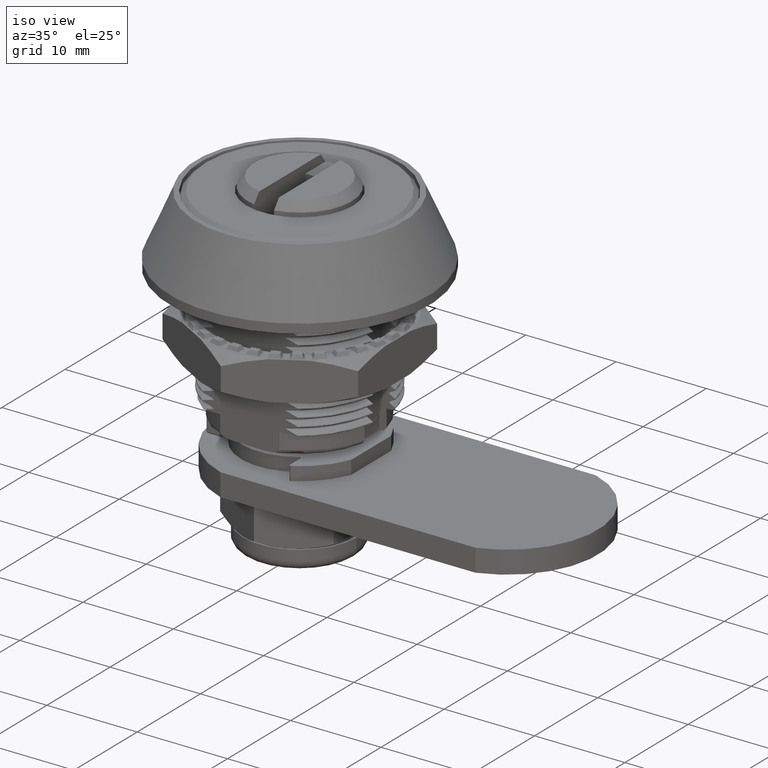
[diagram: clean part render]
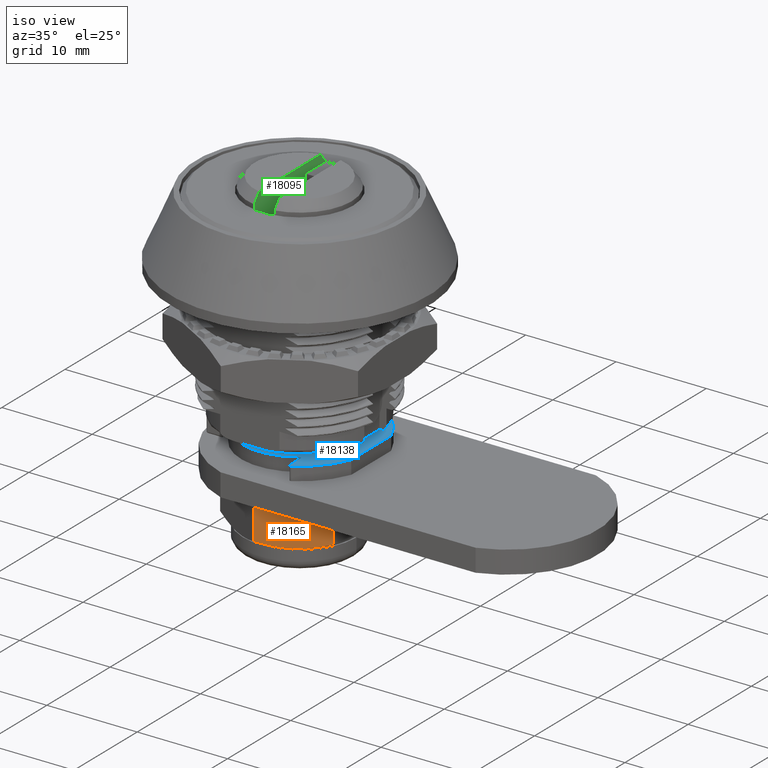
[diagram: same view with three faces highlighted in distinct colors, each labeled with its STEP entity id]
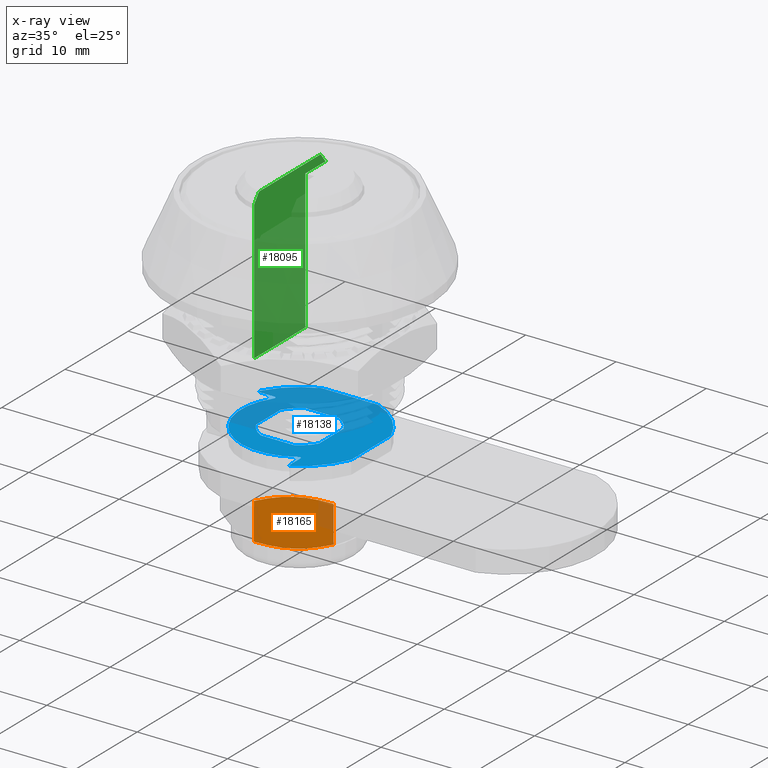
[diagram: x-ray of the same camera — body ghosted, the three highlighted faces saturated]
A machine part, iso view with three faces highlighted in distinct colors.
The next image is the same camera in x-ray (body ghosted, the three faces saturated) — at least one of them is partly hidden behind the body in this view.
Their STEP definitions:

[orange] entity #18165 — the highlighted planar face has unit normal (-0.5, 0.866, 0).
#60=(
BOUNDED_CURVE()
B_SPLINE_CURVE(2,(#52311,#52312,#52313),.UNSPECIFIED.,.F.,.F.)
B_SPLINE_CURVE_WITH_KNOTS((3,3),(0.,0.733624149249563),.UNSPECIFIED.)
CURVE()
GEOMETRIC_REPRESENTATION_ITEM()
RATIONAL_B_SPLINE_CURVE((1.,1.15470053837925,1.))
REPRESENTATION_ITEM('')
);
#61=(
BOUNDED_CURVE()
B_SPLINE_CURVE(2,(#52316,#52317,#52318),.UNSPECIFIED.,.F.,.F.)
B_SPLINE_CURVE_WITH_KNOTS((3,3),(0.,0.733624149249563),.UNSPECIFIED.)
CURVE()
GEOMETRIC_REPRESENTATION_ITEM()
RATIONAL_B_SPLINE_CURVE((1.,1.15470053837925,1.))
REPRESENTATION_ITEM('')
);
#3039=LINE('',#52283,#3852);
#3043=LINE('',#52315,#3856);
#3852=VECTOR('',#20192,4.06054737548);
#3856=VECTOR('',#20202,4.06054737548);
#4385=PLANE('',#18778);
#5449=FACE_OUTER_BOUND('',#6488,.T.);
#6488=EDGE_LOOP('',(#16373,#16374,#16375,#16376));
#8454=VERTEX_POINT('',#52277);
#8456=VERTEX_POINT('',#52282);
#8462=VERTEX_POINT('',#52310);
#8463=VERTEX_POINT('',#52314);
#11148=EDGE_CURVE('',#8456,#8454,#3039,.T.);
#11157=EDGE_CURVE('',#8462,#8454,#60,.T.);
#11158=EDGE_CURVE('',#8463,#8462,#3043,.T.);
#11159=EDGE_CURVE('',#8456,#8463,#61,.T.);
#16373=ORIENTED_EDGE('',*,*,#11157,.F.);
#16374=ORIENTED_EDGE('',*,*,#11158,.F.);
#16375=ORIENTED_EDGE('',*,*,#11159,.F.);
#16376=ORIENTED_EDGE('',*,*,#11148,.T.);
#18165=ADVANCED_FACE('',(#5449),#4385,.F.);
#18778=AXIS2_PLACEMENT_3D('',#52309,#20200,#20201);
#20192=DIRECTION('',(0.,0.,-1.));
#20200=DIRECTION('center_axis',(-0.5,0.866025403784439,0.));
#20201=DIRECTION('ref_axis',(0.,0.,1.));
#20202=DIRECTION('',(0.,0.,-1.));
#52277=CARTESIAN_POINT('',(-5.55111512312578E-16,-7.25,-32.43027368774));
#52282=CARTESIAN_POINT('',(4.43934464690916E-16,-7.25,-28.36972631226));
#52283=CARTESIAN_POINT('',(-5.55111512312578E-16,-7.25,-30.4));
#52309=CARTESIAN_POINT('Origin',(4.43934464690916E-16,-7.25,-33.1));
#52310=CARTESIAN_POINT('',(6.27868417743718,-3.625,-32.43027368774));
#52311=CARTESIAN_POINT('Ctrl Pts',(6.27868417743718,-3.625,-32.43027368774));
#52312=CARTESIAN_POINT('Ctrl Pts',(3.13934208871859,-5.4375,-33.4767210506462));
#52313=CARTESIAN_POINT('Ctrl Pts',(2.41352831440251E-15,-7.25,-32.43027368774));
#52314=CARTESIAN_POINT('',(6.27868417743718,-3.625,-28.36972631226));
#52315=CARTESIAN_POINT('',(6.27868417743718,-3.625,-30.4));
#52316=CARTESIAN_POINT('Ctrl Pts',(2.41352831440251E-15,-7.25,-28.36972631226));
#52317=CARTESIAN_POINT('Ctrl Pts',(3.13934208871859,-5.4375,-27.3232789493538));
#52318=CARTESIAN_POINT('Ctrl Pts',(6.27868417743718,-3.625,-28.36972631226));

[blue] entity #18138 — the highlighted planar face has unit normal (-0, -0, 1).
#2981=LINE('',#52065,#3794);
#2985=LINE('',#52077,#3798);
#2989=LINE('',#52089,#3802);
#2993=LINE('',#52100,#3806);
#2997=LINE('',#52113,#3810);
#3002=LINE('',#52131,#3815);
#3008=LINE('',#52155,#3821);
#3013=LINE('',#52172,#3826);
#3794=VECTOR('',#19962,3.87298334620742);
#3798=VECTOR('',#19974,3.68646171823335);
#3802=VECTOR('',#19986,3.87298334620742);
#3806=VECTOR('',#19998,3.68646171823335);
#3810=VECTOR('',#20010,6.27375485654326);
#3815=VECTOR('',#20029,1.63575905596784);
#3821=VECTOR('',#20055,1.63575905596784);
#3826=VECTOR('',#20074,6.27375485654325);
#4369=PLANE('',#18730);
#4578=FACE_BOUND('',#6450,.T.);
#5422=FACE_OUTER_BOUND('',#6449,.T.);
#6449=EDGE_LOOP('',(#16233,#16234,#16235,#16236,#16237,#16238,#16239,#16240,
#16241,#16242,#16243,#16244));
#6450=EDGE_LOOP('',(#16245,#16246,#16247,#16248,#16249,#16250,#16251,#16252));
#6801=CIRCLE('',#18687,4.);
#6803=CIRCLE('',#18691,4.);
#6805=CIRCLE('',#18695,4.);
#6807=CIRCLE('',#18699,4.);
#6809=CIRCLE('',#18703,8.5);
#6811=CIRCLE('',#18707,8.5);
#6813=CIRCLE('',#18710,0.2);
#6815=CIRCLE('',#18714,0.2);
#6817=CIRCLE('',#18717,6.5);
#6819=CIRCLE('',#18720,0.2);
#6821=CIRCLE('',#18724,0.2);
#6823=CIRCLE('',#18727,8.5);
#8381=VERTEX_POINT('',#52055);
#8382=VERTEX_POINT('',#52056);
#8385=VERTEX_POINT('',#52064);
#8387=VERTEX_POINT('',#52070);
#8389=VERTEX_POINT('',#52076);
#8391=VERTEX_POINT('',#52082);
#8393=VERTEX_POINT('',#52088);
#8395=VERTEX_POINT('',#52094);
#8397=VERTEX_POINT('',#52103);
#8398=VERTEX_POINT('',#52104);
#8401=VERTEX_POINT('',#52112);
#8403=VERTEX_POINT('',#52118);
#8405=VERTEX_POINT('',#52124);
#8407=VERTEX_POINT('',#52130);
#8409=VERTEX_POINT('',#52136);
#8411=VERTEX_POINT('',#52142);
#8413=VERTEX_POINT('',#52148);
#8415=VERTEX_POINT('',#52154);
#8417=VERTEX_POINT('',#52160);
#8419=VERTEX_POINT('',#52166);
#11042=EDGE_CURVE('',#8381,#8382,#6801,.T.);
#11046=EDGE_CURVE('',#8382,#8385,#2981,.T.);
#11049=EDGE_CURVE('',#8385,#8387,#6803,.T.);
#11052=EDGE_CURVE('',#8387,#8389,#2985,.T.);
#11055=EDGE_CURVE('',#8389,#8391,#6805,.T.);
#11058=EDGE_CURVE('',#8391,#8393,#2989,.T.);
#11061=EDGE_CURVE('',#8393,#8395,#6807,.T.);
#11064=EDGE_CURVE('',#8395,#8381,#2993,.T.);
#11066=EDGE_CURVE('',#8397,#8398,#6809,.T.);
#11070=EDGE_CURVE('',#8398,#8401,#2997,.T.);
#11073=EDGE_CURVE('',#8401,#8403,#6811,.T.);
#11076=EDGE_CURVE('',#8403,#8405,#6813,.T.);
#11079=EDGE_CURVE('',#8405,#8407,#3002,.T.);
#11082=EDGE_CURVE('',#8407,#8409,#6815,.T.);
#11085=EDGE_CURVE('',#8409,#8411,#6817,.T.);
#11088=EDGE_CURVE('',#8411,#8413,#6819,.T.);
#11091=EDGE_CURVE('',#8413,#8415,#3008,.T.);
#11094=EDGE_CURVE('',#8415,#8417,#6821,.T.);
#11097=EDGE_CURVE('',#8417,#8419,#6823,.T.);
#11100=EDGE_CURVE('',#8419,#8397,#3013,.T.);
#16233=ORIENTED_EDGE('',*,*,#11100,.T.);
#16234=ORIENTED_EDGE('',*,*,#11066,.T.);
#16235=ORIENTED_EDGE('',*,*,#11070,.T.);
#16236=ORIENTED_EDGE('',*,*,#11073,.T.);
#16237=ORIENTED_EDGE('',*,*,#11076,.T.);
#16238=ORIENTED_EDGE('',*,*,#11079,.T.);
#16239=ORIENTED_EDGE('',*,*,#11082,.T.);
#16240=ORIENTED_EDGE('',*,*,#11085,.T.);
#16241=ORIENTED_EDGE('',*,*,#11088,.T.);
#16242=ORIENTED_EDGE('',*,*,#11091,.T.);
#16243=ORIENTED_EDGE('',*,*,#11094,.T.);
#16244=ORIENTED_EDGE('',*,*,#11097,.T.);
#16245=ORIENTED_EDGE('',*,*,#11055,.T.);
#16246=ORIENTED_EDGE('',*,*,#11058,.T.);
#16247=ORIENTED_EDGE('',*,*,#11061,.T.);
#16248=ORIENTED_EDGE('',*,*,#11064,.T.);
#16249=ORIENTED_EDGE('',*,*,#11042,.T.);
#16250=ORIENTED_EDGE('',*,*,#11046,.T.);
#16251=ORIENTED_EDGE('',*,*,#11049,.T.);
#16252=ORIENTED_EDGE('',*,*,#11052,.T.);
#18138=ADVANCED_FACE('',(#5422,#4578),#4369,.T.);
#18687=AXIS2_PLACEMENT_3D('',#52057,#19954,#19955);
#18691=AXIS2_PLACEMENT_3D('',#52071,#19967,#19968);
#18695=AXIS2_PLACEMENT_3D('',#52083,#19979,#19980);
#18699=AXIS2_PLACEMENT_3D('',#52095,#19991,#19992);
#18703=AXIS2_PLACEMENT_3D('',#52105,#20002,#20003);
#18707=AXIS2_PLACEMENT_3D('',#52119,#20015,#20016);
#18710=AXIS2_PLACEMENT_3D('',#52125,#20022,#20023);
#18714=AXIS2_PLACEMENT_3D('',#52137,#20034,#20035);
#18717=AXIS2_PLACEMENT_3D('',#52143,#20041,#20042);
#18720=AXIS2_PLACEMENT_3D('',#52149,#20048,#20049);
#18724=AXIS2_PLACEMENT_3D('',#52161,#20060,#20061);
#18727=AXIS2_PLACEMENT_3D('',#52167,#20067,#20068);
#18730=AXIS2_PLACEMENT_3D('',#52174,#20076,#20077);
#19954=DIRECTION('center_axis',(4.31772930828453E-16,1.13829290968158E-31,
-1.));
#19955=DIRECTION('ref_axis',(-0.46080771477917,-0.8875,-1.98964297558564E-16));
#19962=DIRECTION('',(-6.72678210739216E-17,1.,8.47848667126269E-32));
#19967=DIRECTION('center_axis',(4.31772930828453E-16,1.13829290968158E-31,
-1.));
#19968=DIRECTION('ref_axis',(-0.875,0.484122918275927,-3.77801314474896E-16));
#19974=DIRECTION('',(1.,5.04507287420866E-16,4.31772930828453E-16));
#19979=DIRECTION('center_axis',(4.31772930828453E-16,1.13829290968158E-31,
-1.));
#19980=DIRECTION('ref_axis',(0.460807714779168,0.887500000000001,1.98964297558563E-16));
#19986=DIRECTION('',(6.72678210739221E-17,-1.,-8.47848667126267E-32));
#19991=DIRECTION('center_axis',(4.31772930828453E-16,1.13829290968158E-31,
-1.));
#19992=DIRECTION('ref_axis',(0.875,-0.484122918275928,3.77801314474896E-16));
#19998=DIRECTION('',(-1.,8.50722738732076E-16,-4.31772930828453E-16));
#20002=DIRECTION('center_axis',(-4.31772930828454E-16,-9.58728498431268E-32,
1.));
#20003=DIRECTION('ref_axis',(-0.369044403326074,-0.929411764705882,-1.59343383629937E-16));
#20010=DIRECTION('',(-1.,-2.22044604925031E-16,-4.31772930828454E-16));
#20015=DIRECTION('center_axis',(-4.31772930828454E-16,-9.58728498431268E-32,
1.));
#20016=DIRECTION('ref_axis',(0.866025403784439,-0.5,3.73926326763902E-16));
#20022=DIRECTION('center_axis',(-4.31772930828454E-16,-9.58728498431268E-32,
1.));
#20023=DIRECTION('ref_axis',(-2.22044604925031E-16,1.,-1.09476442525376E-47));
#20029=DIRECTION('',(1.,5.61404799990026E-16,4.31772930828454E-16));
#20034=DIRECTION('center_axis',(4.31772930828454E-16,9.58728498431268E-32,
-1.));
#20035=DIRECTION('ref_axis',(-2.22044604925031E-16,1.,-1.09476442525376E-47));
#20041=DIRECTION('center_axis',(-4.31772930828453E-16,-9.58728498431268E-32,
1.));
#20042=DIRECTION('ref_axis',(-0.559701492537313,0.828694297827313,-2.41663953821895E-16));
#20048=DIRECTION('center_axis',(4.31772930828454E-16,1.20524753131283E-31,
-1.));
#20049=DIRECTION('ref_axis',(-0.559701492537314,0.828694297827313,-2.41663953821896E-16));
#20055=DIRECTION('',(2.22044604925031E-16,-1.,0.));
#20060=DIRECTION('center_axis',(-4.31772930828454E-16,-9.58728498431268E-32,
1.));
#20061=DIRECTION('ref_axis',(-0.499999999999999,0.866025403784439,-2.15886465414226E-16));
#20067=DIRECTION('center_axis',(-4.31772930828454E-16,-9.58728498431268E-32,
1.));
#20068=DIRECTION('ref_axis',(-0.929411764705882,0.369044403326073,-4.01294841593504E-16));
#20074=DIRECTION('',(-2.22044604925031E-16,1.,0.));
#20076=DIRECTION('center_axis',(-4.31772930828453E-16,-1.13829290968158E-31,
1.));
#20077=DIRECTION('ref_axis',(2.22044604925031E-16,-1.,0.));
#52055=CARTESIAN_POINT('',(-1.84323085911668,-3.54999999999999,-23.7));
#52056=CARTESIAN_POINT('',(-3.5,-1.9364916731037,-23.7));
#52057=CARTESIAN_POINT('Origin',(4.63288555388694E-16,9.99200722162641E-15,
-23.7));
#52064=CARTESIAN_POINT('',(-3.5,1.93649167310372,-23.7));
#52065=CARTESIAN_POINT('',(-3.5,1.35331411876073,-23.7));
#52070=CARTESIAN_POINT('',(-1.84323085911668,3.55000000000001,-23.7));
#52071=CARTESIAN_POINT('Origin',(4.63288555388694E-16,9.99200722162641E-15,
-23.7));
#52076=CARTESIAN_POINT('',(1.84323085911667,3.55000000000001,-23.7));
#52077=CARTESIAN_POINT('',(1.30668371176722,3.55000000000001,-23.7));
#52082=CARTESIAN_POINT('',(3.5,1.93649167310372,-23.7));
#52083=CARTESIAN_POINT('Origin',(4.63288555388694E-16,9.99200722162641E-15,
-23.7));
#52088=CARTESIAN_POINT('',(3.5,-1.9364916731037,-23.7));
#52089=CARTESIAN_POINT('',(3.5,-0.583177554342975,-23.7));
#52094=CARTESIAN_POINT('',(1.84323085911667,-3.54999999999999,-23.7));
#52095=CARTESIAN_POINT('Origin',(4.63288555388694E-16,9.99200722162641E-15,
-23.7));
#52100=CARTESIAN_POINT('',(-0.536547147349461,-3.54999999999999,-23.7));
#52103=CARTESIAN_POINT('',(7.90000000000001,3.13687742827163,-23.7));
#52104=CARTESIAN_POINT('',(3.13687742827164,7.9,-23.7));
#52105=CARTESIAN_POINT('Origin',(1.02330184606344E-14,2.27218654128211E-30,
-23.7));
#52112=CARTESIAN_POINT('',(-3.13687742827162,7.9,-23.7));
#52113=CARTESIAN_POINT('',(3.13687742827164,7.9,-23.7));
#52118=CARTESIAN_POINT('',(-7.36121593216772,4.25,-23.7));
#52119=CARTESIAN_POINT('Origin',(1.02330184606344E-14,2.27218654128211E-30,
-23.7));
#52124=CARTESIAN_POINT('',(-7.18801085141083,3.95,-23.7));
#52125=CARTESIAN_POINT('Origin',(-7.18801085141083,4.15,-23.7));
#52130=CARTESIAN_POINT('',(-5.55225179544299,3.95,-23.7));
#52131=CARTESIAN_POINT('',(-7.18801085141083,3.95,-23.7));
#52136=CARTESIAN_POINT('',(-5.38651293587753,3.63805970149254,-23.7));
#52137=CARTESIAN_POINT('Origin',(-5.55225179544299,3.75,-23.7));
#52142=CARTESIAN_POINT('',(3.63805970149255,-5.38651293587754,-23.7));
#52143=CARTESIAN_POINT('Origin',(1.02330184606344E-14,2.27218654128211E-30,
-23.7));
#52148=CARTESIAN_POINT('',(3.95000000000001,-5.552251795443,-23.7));
#52149=CARTESIAN_POINT('Origin',(3.75000000000001,-5.552251795443,-23.7));
#52154=CARTESIAN_POINT('',(3.95000000000001,-7.18801085141084,-23.7));
#52155=CARTESIAN_POINT('',(3.95000000000001,-5.552251795443,-23.7));
#52160=CARTESIAN_POINT('',(4.25000000000001,-7.36121593216773,-23.7));
#52161=CARTESIAN_POINT('Origin',(4.15000000000001,-7.18801085141084,-23.7));
#52166=CARTESIAN_POINT('',(7.90000000000001,-3.13687742827162,-23.7));
#52167=CARTESIAN_POINT('Origin',(1.02330184606344E-14,2.27218654128211E-30,
-23.7));
#52172=CARTESIAN_POINT('',(7.90000000000001,-3.13687742827162,-23.7));
#52174=CARTESIAN_POINT('Origin',(0.77013656441776,0.77013656441775,-23.7));

[green] entity #18095 — the highlighted planar face has unit normal (-1, 0, 0).
#52=(
BOUNDED_CURVE()
B_SPLINE_CURVE(2,(#51954,#51955,#51956),.UNSPECIFIED.,.F.,.F.)
B_SPLINE_CURVE_WITH_KNOTS((3,3),(0.,0.125984938468556),.UNSPECIFIED.)
CURVE()
GEOMETRIC_REPRESENTATION_ITEM()
RATIONAL_B_SPLINE_CURVE((1.,1.00255042527971,1.))
REPRESENTATION_ITEM('')
);
#53=(
BOUNDED_CURVE()
B_SPLINE_CURVE(2,(#51959,#51960,#51961),.UNSPECIFIED.,.F.,.F.)
B_SPLINE_CURVE_WITH_KNOTS((3,3),(0.,0.125984938468556),.UNSPECIFIED.)
CURVE()
GEOMETRIC_REPRESENTATION_ITEM()
RATIONAL_B_SPLINE_CURVE((1.,1.0025504252776,1.))
REPRESENTATION_ITEM('')
);
#2954=LINE('',#51924,#3767);
#2955=LINE('',#51928,#3768);
#2958=LINE('',#51940,#3771);
#2961=LINE('',#51958,#3774);
#2962=LINE('',#51962,#3775);
#3767=VECTOR('',#19841,15.4);
#3768=VECTOR('',#19844,15.4);
#3771=VECTOR('',#19857,3.19380191006028);
#3774=VECTOR('',#19864,9.75499871860576);
#3775=VECTOR('',#19865,8.09380191006027);
#4348=PLANE('',#18650);
#5379=FACE_OUTER_BOUND('',#6401,.T.);
#6401=EDGE_LOOP('',(#16069,#16070,#16071,#16072,#16073,#16074,#16075));
#8348=VERTEX_POINT('',#51918);
#8350=VERTEX_POINT('',#51922);
#8351=VERTEX_POINT('',#51926);
#8352=VERTEX_POINT('',#51927);
#8353=VERTEX_POINT('',#51929);
#8359=VERTEX_POINT('',#51953);
#8360=VERTEX_POINT('',#51957);
#10995=EDGE_CURVE('',#8350,#8348,#2954,.T.);
#10996=EDGE_CURVE('',#8351,#8352,#2955,.T.);
#11003=EDGE_CURVE('',#8350,#8353,#2958,.T.);
#11008=EDGE_CURVE('',#8359,#8353,#52,.T.);
#11009=EDGE_CURVE('',#8360,#8359,#2961,.T.);
#11010=EDGE_CURVE('',#8352,#8360,#53,.T.);
#11011=EDGE_CURVE('',#8348,#8351,#2962,.T.);
#16069=ORIENTED_EDGE('',*,*,#11008,.F.);
#16070=ORIENTED_EDGE('',*,*,#11009,.F.);
#16071=ORIENTED_EDGE('',*,*,#11010,.F.);
#16072=ORIENTED_EDGE('',*,*,#10996,.F.);
#16073=ORIENTED_EDGE('',*,*,#11011,.F.);
#16074=ORIENTED_EDGE('',*,*,#10995,.F.);
#16075=ORIENTED_EDGE('',*,*,#11003,.T.);
#18095=ADVANCED_FACE('',(#5379),#4348,.F.);
#18650=AXIS2_PLACEMENT_3D('',#51952,#19862,#19863);
#19841=DIRECTION('',(0.,0.,-1.));
#19844=DIRECTION('',(0.,-1.83697019872103E-16,1.));
#19857=DIRECTION('',(0.,1.,1.83697019872103E-16));
#19862=DIRECTION('center_axis',(-1.,0.,0.));
#19863=DIRECTION('ref_axis',(0.,1.,2.22044604925031E-16));
#19864=DIRECTION('',(0.,1.,1.83697019872103E-16));
#19865=DIRECTION('',(0.,-1.,-4.31772930828453E-16));
#51918=CARTESIAN_POINT('',(-1.1,2.45,-15.));
#51922=CARTESIAN_POINT('',(-1.1,2.45,0.399999999999993));
#51924=CARTESIAN_POINT('',(-1.1,2.45,0.399999999999993));
#51926=CARTESIAN_POINT('',(-1.1,-5.64380191006027,-15.));
#51927=CARTESIAN_POINT('',(-1.1,-5.64380191006028,0.399999999999994));
#51928=CARTESIAN_POINT('',(-1.1,-5.64380191006028,-7.30000000000001));
#51929=CARTESIAN_POINT('',(-1.1,5.64380191006028,0.399999999999996));
#51940=CARTESIAN_POINT('',(-1.1,9.87250038833446,0.399999999999997));
#51952=CARTESIAN_POINT('Origin',(-1.1,-9.87250038833446,1.39999999999999));
#51953=CARTESIAN_POINT('',(-1.1,4.87749935930288,1.4));
#51954=CARTESIAN_POINT('Ctrl Pts',(-1.1,4.87749935930288,1.4));
#51955=CARTESIAN_POINT('Ctrl Pts',(-1.1,5.23391915034879,0.936416719341536));
#51956=CARTESIAN_POINT('Ctrl Pts',(-1.1,5.64380191006028,0.399999999999994));
#51957=CARTESIAN_POINT('',(-1.1,-4.87749935930288,1.39999999999999));
#51958=CARTESIAN_POINT('',(-1.1,-2.43625019416723,1.39999999999999));
#51959=CARTESIAN_POINT('Ctrl Pts',(-1.1,-5.64380191006028,0.399999999999992));
#51960=CARTESIAN_POINT('Ctrl Pts',(-1.1,-5.23391915035017,0.936416719339737));
#51961=CARTESIAN_POINT('Ctrl Pts',(-1.1,-4.87749935930288,1.4));
#51962=CARTESIAN_POINT('',(-1.1,-4.93625019416722,-15.));